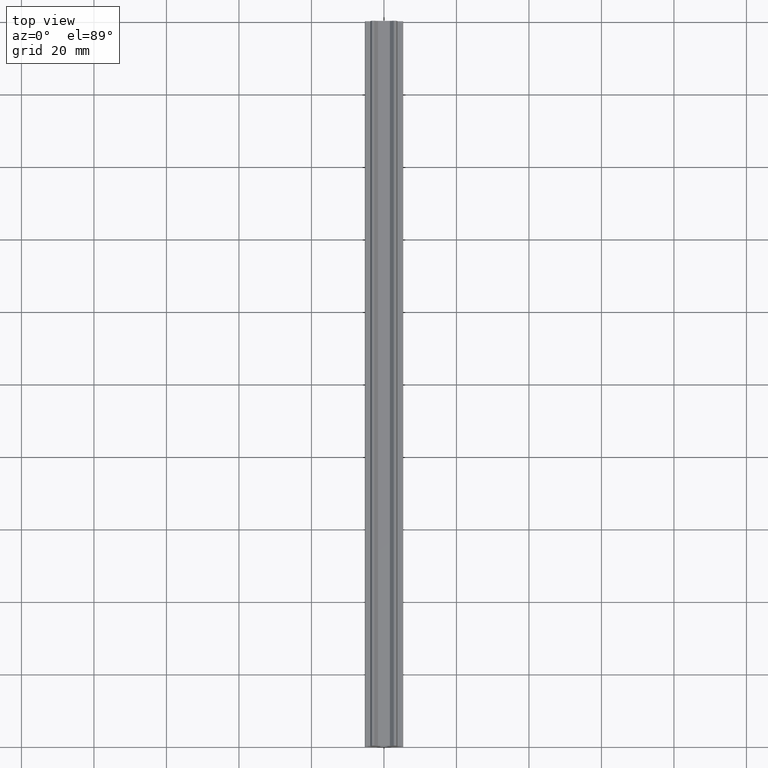
[diagram: clean part render]
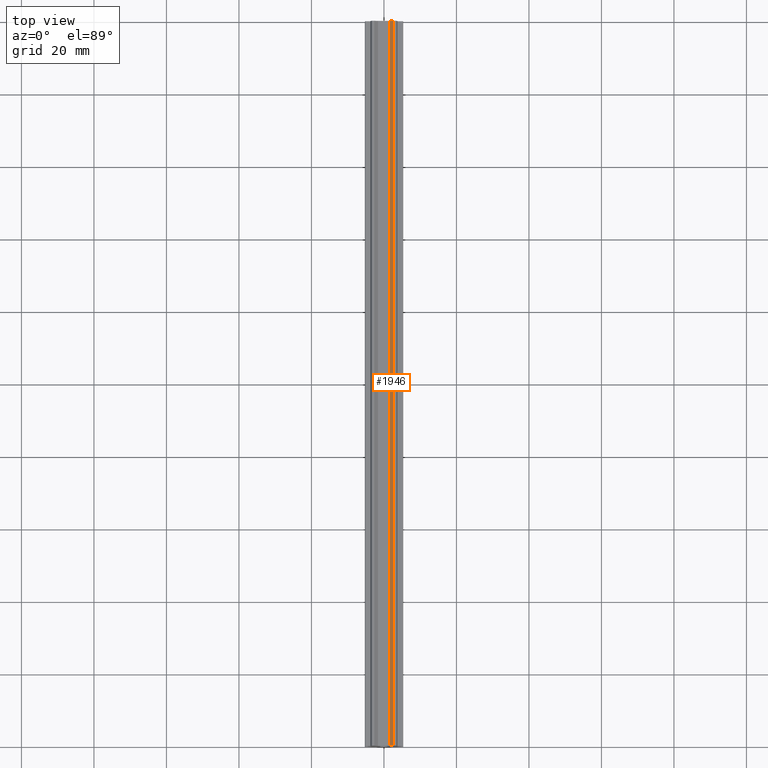
[diagram: same view with one face highlighted and labeled with its STEP entity id]
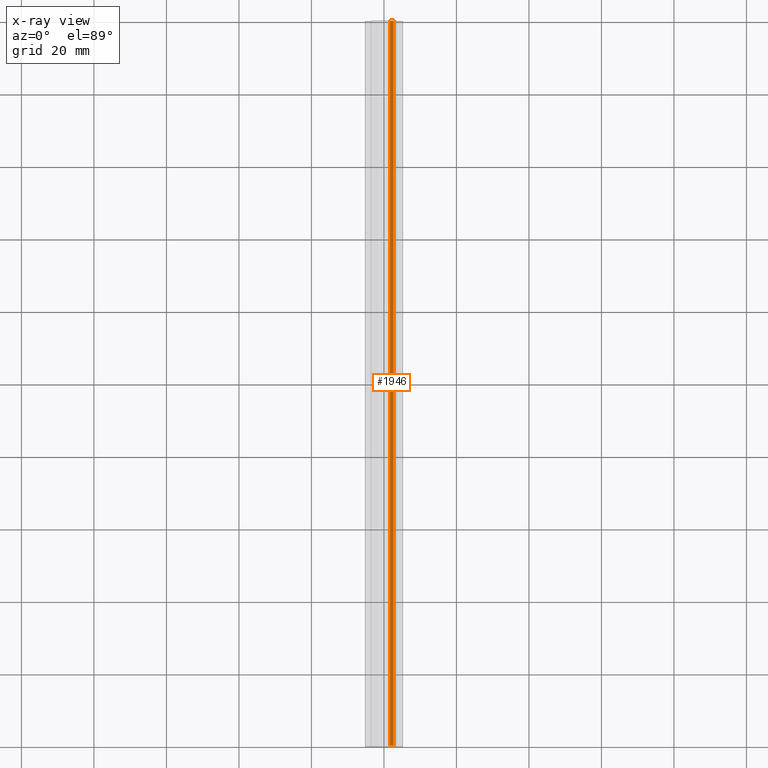
[diagram: x-ray of the same camera — body ghosted, the highlighted face saturated]
A machine part, top view. The second image highlights one B-rep face of the part: STEP entity #1946.
The next image is the same camera in x-ray: the body ghosted, the highlighted face saturated — about 0% of this face is hidden behind the body in this view.
In plain terms, the highlighted face is a freeform B-spline surface patch.
Its self-contained STEP definition (entity closure, byte-faithful):
#709=CARTESIAN_POINT('',(2.607942751445570,0.0,1.210308095053990));
#710=VERTEX_POINT('',#709);
#726=CARTESIAN_POINT('',(1.650000000000000,0.0,0.0));
#727=VERTEX_POINT('',#726);
#728=CARTESIAN_POINT('',(1.650000000000000,0.0,0.0));
#729=CARTESIAN_POINT('',(2.607942751445570,0.0,1.210308095053990));
#730=QUASI_UNIFORM_CURVE('',1,(#728,#729),.UNSPECIFIED.,.F.,.U.);
#731=EDGE_CURVE('',#727,#710,#730,.T.);
#929=CARTESIAN_POINT('',(1.650000000000000,200.0,0.0));
#930=VERTEX_POINT('',#929);
#936=CARTESIAN_POINT('',(2.607942751445570,200.0,1.210308095053990));
#937=VERTEX_POINT('',#936);
#938=CARTESIAN_POINT('',(1.650000000000000,200.0,0.0));
#939=CARTESIAN_POINT('',(2.607942751445570,200.0,1.210308095053990));
#940=QUASI_UNIFORM_CURVE('',1,(#938,#939),.UNSPECIFIED.,.F.,.U.);
#941=EDGE_CURVE('',#930,#937,#940,.T.);
#1921=CARTESIAN_POINT('',(1.650000000000000,200.0,0.0));
#1922=CARTESIAN_POINT('',(1.650000000000000,0.0,0.0));
#1923=QUASI_UNIFORM_CURVE('',1,(#1921,#1922),.UNSPECIFIED.,.F.,.U.);
#1924=EDGE_CURVE('',#930,#727,#1923,.T.);
#1931=CARTESIAN_POINT('',(2.655792008008557,-9.989999612361194,1.270763004779140));
#1932=CARTESIAN_POINT('',(1.602150734872335,-9.989999612361194,-0.060454920546146));
#1933=CARTESIAN_POINT('',(2.655792008008557,209.990004976779200,1.270763004779140));
#1934=CARTESIAN_POINT('',(1.602150734872335,209.990004976779200,-0.060454920546146));
#1935=B_SPLINE_SURFACE_WITH_KNOTS('',1,1,((#1931,#1933),(#1932,#1934)),.UNSPECIFIED.,.F.,.F.,.U.,(2,2),(2,2),(0.041708319303021,0.958291688147560),(0.0,219.980004589140410),.UNSPECIFIED.);
#1936=ORIENTED_EDGE('',*,*,#731,.T.);
#1937=CARTESIAN_POINT('',(2.607942751445570,200.0,1.210308095053990));
#1938=CARTESIAN_POINT('',(2.607942751445570,0.0,1.210308095053990));
#1939=QUASI_UNIFORM_CURVE('',1,(#1937,#1938),.UNSPECIFIED.,.F.,.U.);
#1940=EDGE_CURVE('',#937,#710,#1939,.T.);
#1941=ORIENTED_EDGE('',*,*,#1940,.F.);
#1942=ORIENTED_EDGE('',*,*,#941,.F.);
#1943=ORIENTED_EDGE('',*,*,#1924,.T.);
#1944=EDGE_LOOP('',(#1936,#1941,#1942,#1943));
#1945=FACE_OUTER_BOUND('',#1944,.T.);
#1946=ADVANCED_FACE('',(#1945),#1935,.F.);